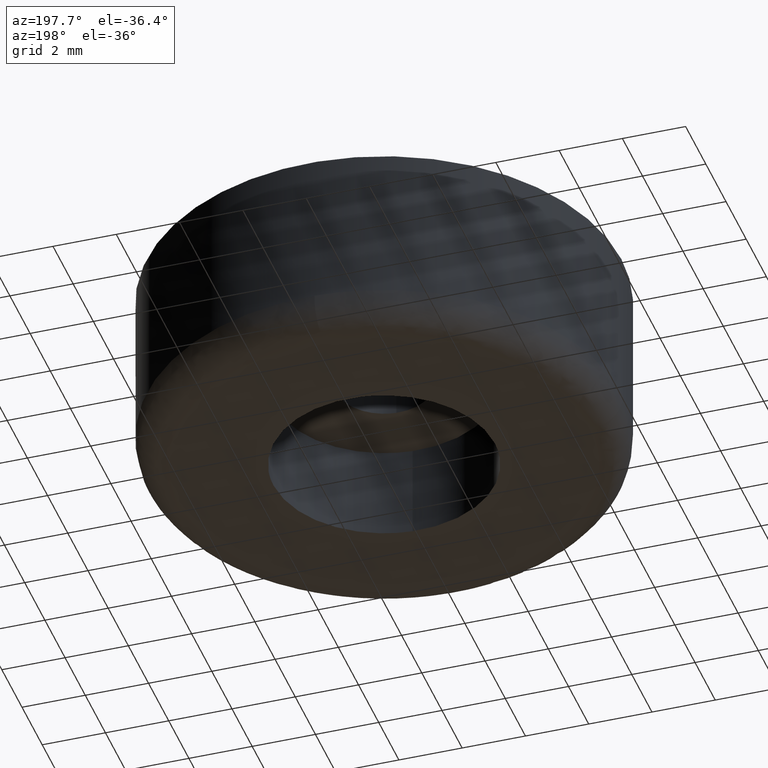
[diagram: clean part render]
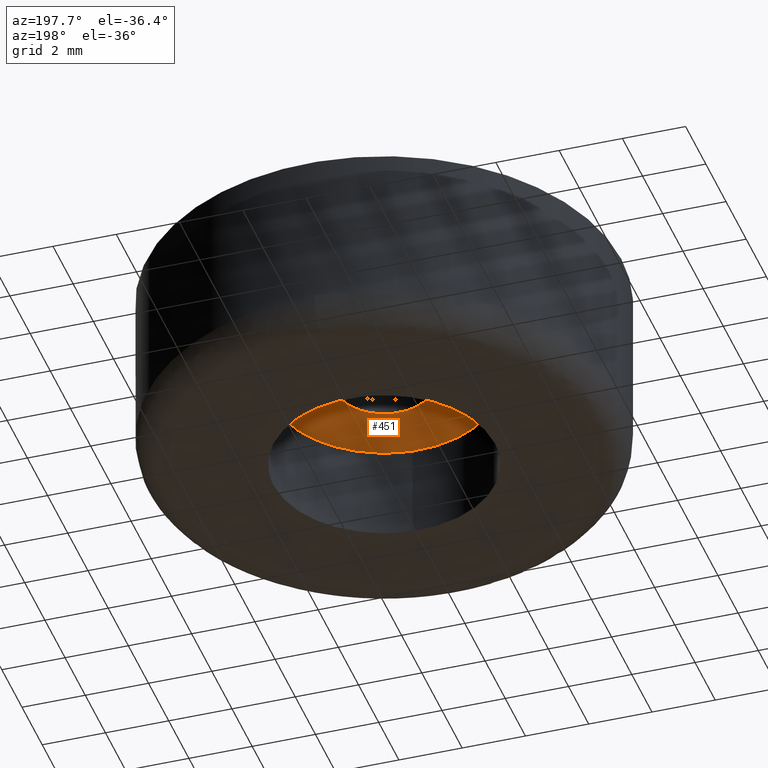
[diagram: same view with one face highlighted and labeled with its STEP entity id]
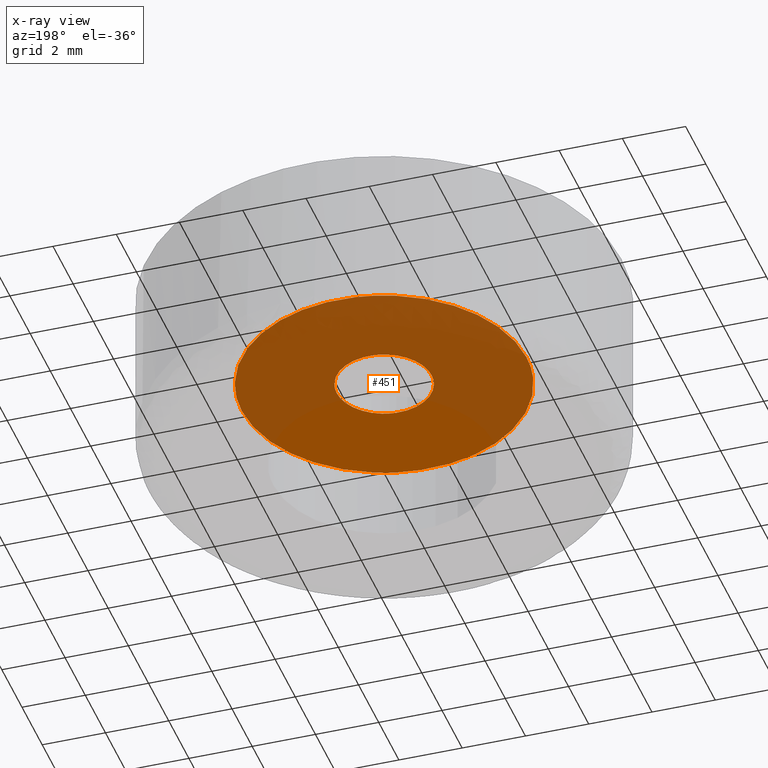
[diagram: x-ray of the same camera — body ghosted, the highlighted face saturated]
A machine part, auxiliary view. The second image highlights one B-rep face of the part: STEP entity #451.
The next image is the same camera in x-ray: the body ghosted, the highlighted face saturated — about 70% of this face is hidden behind the body in this view.
In plain terms, the highlighted face is a freeform B-spline surface patch.
Its self-contained STEP definition (entity closure, byte-faithful):
#100=CARTESIAN_POINT('',(0.274713743667397,-4.491606879393856,3.0));
#101=VERTEX_POINT('',#100);
#107=CARTESIAN_POINT('',(4.500000000000000,0.0,3.0));
#108=VERTEX_POINT('',#107);
#109=CARTESIAN_POINT('',(4.500000000000000,0.0,3.0));
#110=CARTESIAN_POINT('',(4.499999999999999,-4.233181724054091,3.0));
#111=CARTESIAN_POINT('',(0.274713743667397,-4.491606879393856,3.000000000000000));
#119=(BOUNDED_CURVE()B_SPLINE_CURVE(2,(#109,#110,#111),.UNSPECIFIED.,.F.,.U.)B_SPLINE_CURVE_WITH_KNOTS((3,3),(0.500000000000000,0.739333142188848),.UNSPECIFIED.)CURVE()GEOMETRIC_REPRESENTATION_ITEM()RATIONAL_B_SPLINE_CURVE((1.0,0.719603782462283,0.976072427333922))REPRESENTATION_ITEM(''));
#120=EDGE_CURVE('',#108,#101,#119,.T.);
#122=CARTESIAN_POINT('',(-0.531149302577952,4.468543433642335,3.0));
#123=VERTEX_POINT('',#122);
#124=CARTESIAN_POINT('',(-0.531149302577952,4.468543433642335,3.000000000000001));
#125=CARTESIAN_POINT('',(-0.266506136619194,4.500000000000000,3.000000000000000));
#126=CARTESIAN_POINT('',(0.0,4.500000000000000,3.0));
#127=CARTESIAN_POINT('',(4.500000000000000,4.500000000000000,3.000000000000000));
#128=CARTESIAN_POINT('',(4.500000000000000,0.0,3.0));
#136=(BOUNDED_CURVE()B_SPLINE_CURVE(2,(#124,#125,#126,#127,#128),.UNSPECIFIED.,.F.,.U.)B_SPLINE_CURVE_WITH_KNOTS((3,2,3),(0.229562653291538,0.250000000000000,0.500000000000000),.UNSPECIFIED.)CURVE()GEOMETRIC_REPRESENTATION_ITEM()RATIONAL_B_SPLINE_CURVE((0.956027106556297,0.976056158954208,1.0,0.707106781186547,1.0))REPRESENTATION_ITEM(''));
#137=EDGE_CURVE('',#123,#108,#136,.T.);
#181=CARTESIAN_POINT('',(-4.500000000000000,0.0,3.0));
#182=VERTEX_POINT('',#181);
#183=CARTESIAN_POINT('',(-4.500000000000000,0.0,3.0));
#184=CARTESIAN_POINT('',(-4.500000000000001,3.996789648261315,2.999999999999999));
#185=CARTESIAN_POINT('',(-0.531149302577952,4.468543433642335,3.000000000000001));
#193=(BOUNDED_CURVE()B_SPLINE_CURVE(2,(#183,#184,#185),.UNSPECIFIED.,.F.,.U.)B_SPLINE_CURVE_WITH_KNOTS((3,3),(0.0,0.229562653291538),.UNSPECIFIED.)CURVE()GEOMETRIC_REPRESENTATION_ITEM()RATIONAL_B_SPLINE_CURVE((1.0,0.731050622232340,0.956027106556297))REPRESENTATION_ITEM(''));
#194=EDGE_CURVE('',#182,#123,#193,.T.);
#196=CARTESIAN_POINT('',(0.274713743667397,-4.491606879393856,3.000000000000000));
#197=CARTESIAN_POINT('',(0.137485086157032,-4.500000000000001,3.0));
#198=CARTESIAN_POINT('',(0.0,-4.500000000000000,3.0));
#199=CARTESIAN_POINT('',(-4.500000000000000,-4.500000000000000,3.000000000000000));
#200=CARTESIAN_POINT('',(-4.500000000000000,0.0,3.0));
#208=(BOUNDED_CURVE()B_SPLINE_CURVE(2,(#196,#197,#198,#199,#200),.UNSPECIFIED.,.F.,.U.)B_SPLINE_CURVE_WITH_KNOTS((3,2,3),(0.739333142188848,0.750000000000000,1.0),.UNSPECIFIED.)CURVE()GEOMETRIC_REPRESENTATION_ITEM()RATIONAL_B_SPLINE_CURVE((0.976072427333922,0.987502998724265,1.0,0.707106781186547,1.0))REPRESENTATION_ITEM(''));
#209=EDGE_CURVE('',#101,#182,#208,.T.);
#271=CARTESIAN_POINT('',(-0.177051352002078,1.489514289543486,3.0));
#272=VERTEX_POINT('',#271);
#278=CARTESIAN_POINT('',(1.500000000000000,0.0,3.0));
#279=VERTEX_POINT('',#278);
#280=CARTESIAN_POINT('',(-0.177051352002078,1.489514289543485,3.000000000000000));
#281=CARTESIAN_POINT('',(-0.088836179494984,1.500000000000000,3.000000000000000));
#282=CARTESIAN_POINT('',(0.0,1.500000000000000,3.0));
#283=CARTESIAN_POINT('',(1.500000000000000,1.500000000000000,3.0));
#284=CARTESIAN_POINT('',(1.500000000000000,0.0,3.0));
#292=(BOUNDED_CURVE()B_SPLINE_CURVE(2,(#280,#281,#282,#283,#284),.UNSPECIFIED.,.F.,.U.)B_SPLINE_CURVE_WITH_KNOTS((3,2,3),(0.229562473511800,0.250000000000000,0.500000000000000),.UNSPECIFIED.)CURVE()GEOMETRIC_REPRESENTATION_ITEM()RATIONAL_B_SPLINE_CURVE((0.956026754180351,0.976055948329144,1.0,0.707106781186548,1.0))REPRESENTATION_ITEM(''));
#293=EDGE_CURVE('',#272,#279,#292,.T.);
#295=CARTESIAN_POINT('',(0.091572612195500,-1.497202209688342,3.0));
#296=VERTEX_POINT('',#295);
#297=CARTESIAN_POINT('',(1.500000000000000,0.0,3.0));
#298=CARTESIAN_POINT('',(1.500000000000000,-1.411059472584951,2.999999999999999));
#299=CARTESIAN_POINT('',(0.091572612195500,-1.497202209688342,3.000000000000000));
#307=(BOUNDED_CURVE()B_SPLINE_CURVE(2,(#297,#298,#299),.UNSPECIFIED.,.F.,.U.)B_SPLINE_CURVE_WITH_KNOTS((3,3),(0.500000000000000,0.739333007673568),.UNSPECIFIED.)CURVE()GEOMETRIC_REPRESENTATION_ITEM()RATIONAL_B_SPLINE_CURVE((1.0,0.719603940056736,0.976072139041787))REPRESENTATION_ITEM(''));
#308=EDGE_CURVE('',#279,#296,#307,.T.);
#382=CARTESIAN_POINT('',(-1.500000000000000,0.0,3.0));
#383=VERTEX_POINT('',#382);
#384=CARTESIAN_POINT('',(0.091572612195500,-1.497202209688341,3.0));
#385=CARTESIAN_POINT('',(0.045828947288432,-1.500000000000000,3.000000000000000));
#386=CARTESIAN_POINT('',(0.0,-1.500000000000000,3.0));
#387=CARTESIAN_POINT('',(-1.500000000000000,-1.500000000000000,3.0));
#388=CARTESIAN_POINT('',(-1.500000000000000,0.0,3.0));
#396=(BOUNDED_CURVE()B_SPLINE_CURVE(2,(#384,#385,#386,#387,#388),.UNSPECIFIED.,.F.,.U.)B_SPLINE_CURVE_WITH_KNOTS((3,2,3),(0.739333007673567,0.750000000000000,1.0),.UNSPECIFIED.)CURVE()GEOMETRIC_REPRESENTATION_ITEM()RATIONAL_B_SPLINE_CURVE((0.976072139041785,0.987502841129810,1.0,0.707106781186548,1.0))REPRESENTATION_ITEM(''));
#397=EDGE_CURVE('',#296,#383,#396,.T.);
#399=CARTESIAN_POINT('',(-1.500000000000000,0.0,3.0));
#400=CARTESIAN_POINT('',(-1.500000000000000,1.332261788896535,3.000000000000001));
#401=CARTESIAN_POINT('',(-0.177051352002078,1.489514289543485,3.000000000000000));
#409=(BOUNDED_CURVE()B_SPLINE_CURVE(2,(#399,#400,#401),.UNSPECIFIED.,.F.,.U.)B_SPLINE_CURVE_WITH_KNOTS((3,3),(0.0,0.229562473511800),.UNSPECIFIED.)CURVE()GEOMETRIC_REPRESENTATION_ITEM()RATIONAL_B_SPLINE_CURVE((1.0,0.731050832857404,0.956026754180351))REPRESENTATION_ITEM(''));
#410=EDGE_CURVE('',#383,#272,#409,.T.);
#434=CARTESIAN_POINT('',(4.949549982556253,-4.949440710012758,3.0));
#435=CARTESIAN_POINT('',(-4.949550223955065,-4.949440710012758,3.0));
#436=CARTESIAN_POINT('',(4.949549982556253,4.949468149010982,3.0));
#437=CARTESIAN_POINT('',(-4.949550223955065,4.949468149010982,3.0));
#438=B_SPLINE_SURFACE_WITH_KNOTS('',1,1,((#434,#436),(#435,#437)),.UNSPECIFIED.,.F.,.F.,.U.,(2,2),(2,2),(0.0,9.899100206511317),(0.0,9.898908859023740),.UNSPECIFIED.);
#439=ORIENTED_EDGE('',*,*,#194,.T.);
#440=ORIENTED_EDGE('',*,*,#137,.T.);
#441=ORIENTED_EDGE('',*,*,#120,.T.);
#442=ORIENTED_EDGE('',*,*,#209,.T.);
#443=EDGE_LOOP('',(#439,#440,#441,#442));
#444=FACE_OUTER_BOUND('',#443,.T.);
#445=ORIENTED_EDGE('',*,*,#308,.F.);
#446=ORIENTED_EDGE('',*,*,#293,.F.);
#447=ORIENTED_EDGE('',*,*,#410,.F.);
#448=ORIENTED_EDGE('',*,*,#397,.F.);
#449=EDGE_LOOP('',(#445,#446,#447,#448));
#450=FACE_BOUND('',#449,.T.);
#451=ADVANCED_FACE('',(#444,#450),#438,.T.);